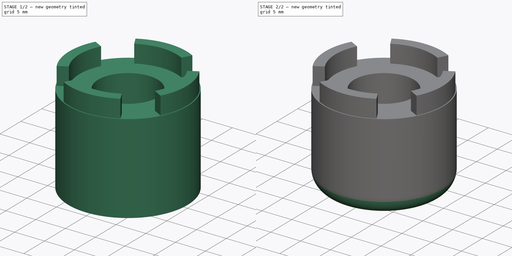
[diagram: build sequence overview — one tinted view per stage of 2, left to right]
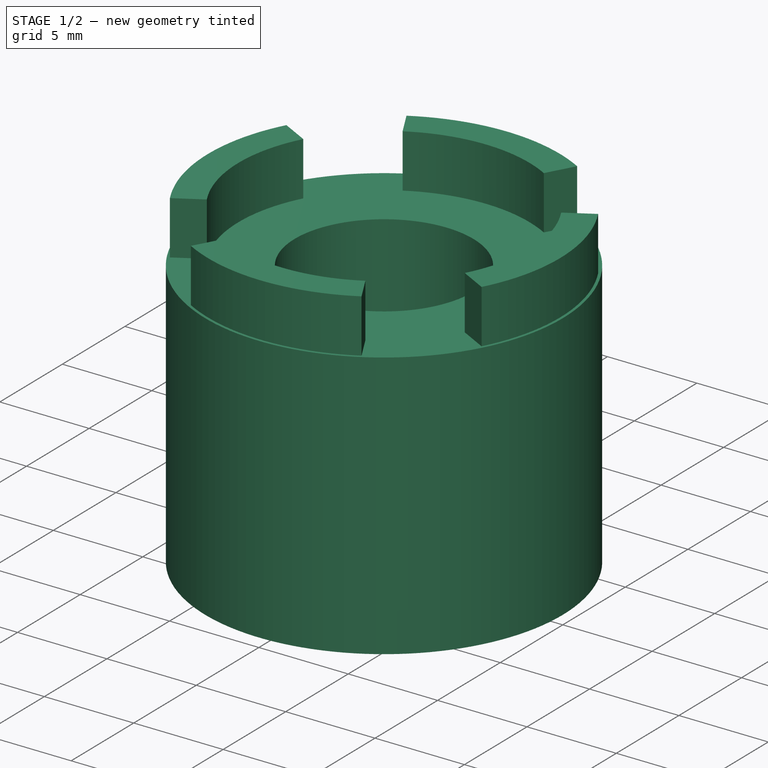
[diagram: stage 1 of 2 — iso view after this stage's code; geometry added in this stage tinted green]
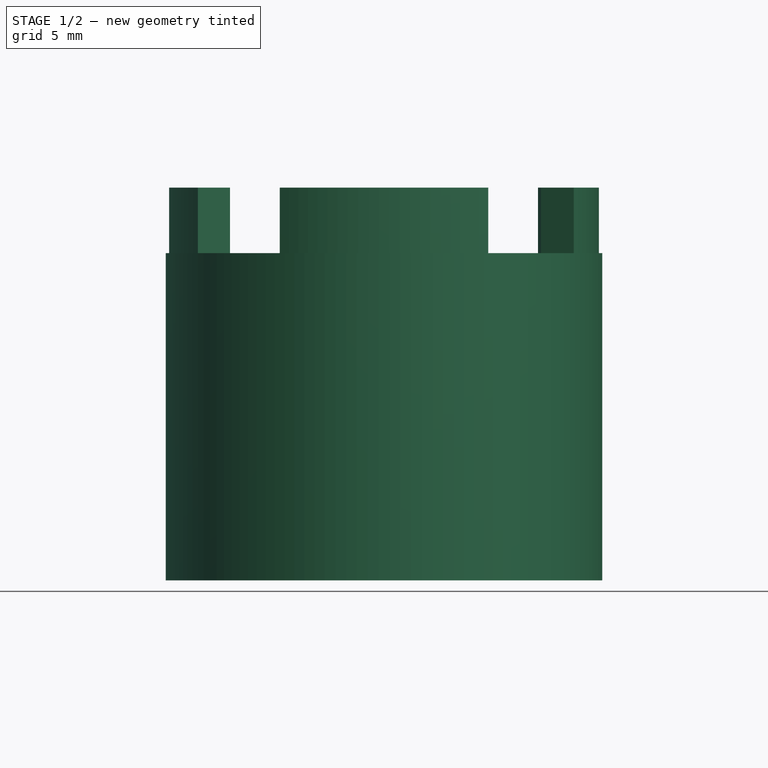
[diagram: stage 1 of 2 — front view after this stage's code; geometry added in this stage tinted green]
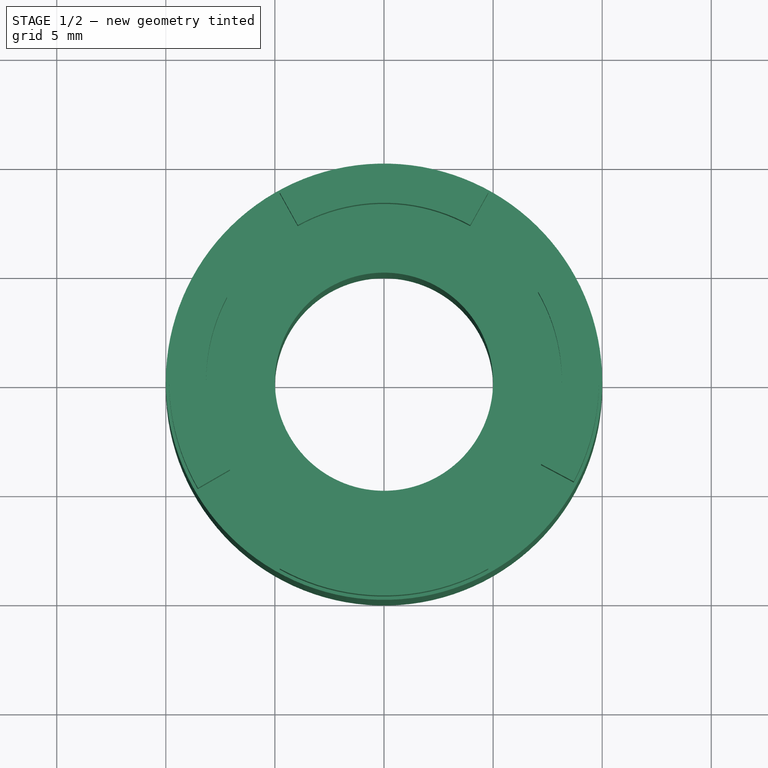
[diagram: stage 1 of 2 — top view after this stage's code; geometry added in this stage tinted green]
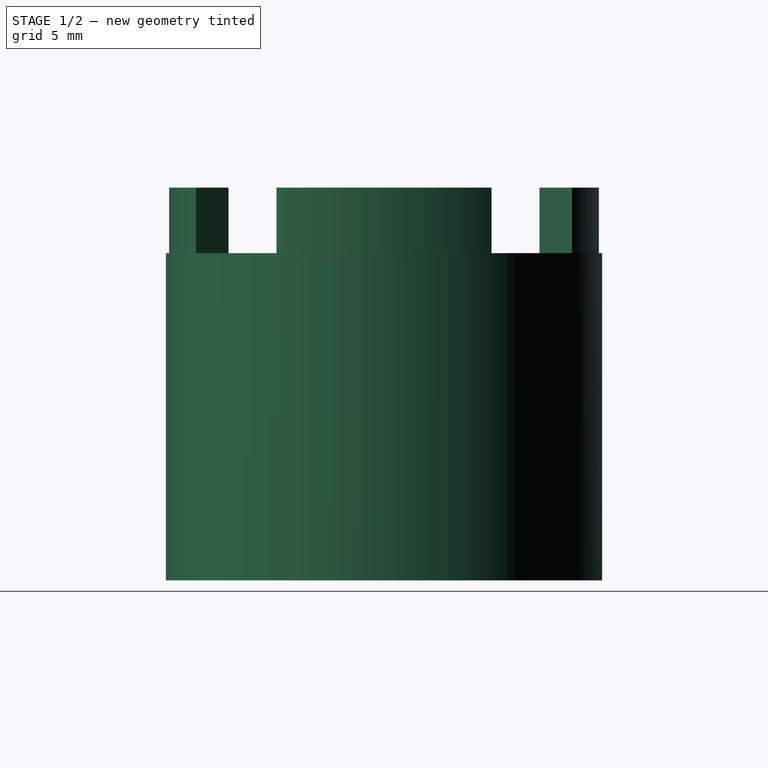
[diagram: stage 1 of 2 — right view after this stage's code; geometry added in this stage tinted green]
FCSTD DOCUMENT  (FreeCAD 0.18R16146 (Git))
Label: remote_eye
License: All rights reserved
LicenseURL: http://en.wikipedia.org/wiki/All_rights_reserved
objects: Sketcher::SketchObject×2, PartDesign::Pad×2, PartDesign::Fillet×1, PartDesign::Body×1
note: 8 computed .brp shape members not serialized (recipe doc carries the construction recipe); baked Part::Feature solids carry a one-line shape summary decoded from their .brp

FEATURE [Sketcher::SketchObject] Sketch
  MapMode = 5
  Support = -> [XY_Plane]
  sketch-geometry (2):
    g0: Circle CenterX=0 CenterY=0 CenterZ=0 NormalX=0 NormalY=0 NormalZ=1 AngleXU=0 Radius=5
    g1: Circle CenterX=0 CenterY=0 CenterZ=0 NormalX=0 NormalY=0 NormalZ=1 AngleXU=0 Radius=10
  constraints (4):
    c: Coincident(g0,g-1)
    c: Coincident(g1,g0)
    c: Diameter(g1) = 20
    c: Diameter(g0) = 10
FEATURE [PartDesign::Pad] Pad
  Length = 15
  Length2 = 100
  Profile = -> Sketch
  Type = 0
FEATURE [Sketcher::SketchObject] Sketch001
  MapMode = 5
  Placement = pos=(0,0,15) rot=(0,0,1;0rad)
  Support = -> [Pad]
  sketch-geometry (20):
    g0: ArcOfCircle CenterX=0 CenterY=0 CenterZ=0 NormalX=0 NormalY=0 NormalZ=1 AngleXU=0 Radius=9.85 StartAngle=2.6529 EndAngle=3.66519
    g1: ArcOfCircle CenterX=0 CenterY=0 CenterZ=0 NormalX=0 NormalY=0 NormalZ=1 AngleXU=0 Radius=8.15 StartAngle=2.6529 EndAngle=3.66519
    g2: LineSegment StartX=-3.9512 StartY=7.12815 StartZ=0 EndX=-4.77537 EndY=8.615 EndZ=0
    g3: LineSegment StartX=3.9512 StartY=7.12815 StartZ=0 EndX=4.77537 EndY=8.615 EndZ=0
    g4: LineSegment StartX=3.9512 StartY=-7.12815 StartZ=0 EndX=4.77537 EndY=-8.615 EndZ=0
    g5: LineSegment StartX=-3.9512 StartY=-7.12815 StartZ=0 EndX=-4.77537 EndY=-8.615 EndZ=0
    g6: LineSegment StartX=-7.05811 StartY=-4.075 StartZ=0 EndX=-8.53035 EndY=-4.925 EndZ=0
    g7: LineSegment StartX=-7.19602 StartY=3.82619 StartZ=0 EndX=-8.69703 EndY=4.62429 EndZ=0
    g8: LineSegment StartX=7.05811 StartY=4.075 StartZ=0 EndX=8.53035 EndY=4.925 EndZ=0
    g9: LineSegment StartX=7.19602 StartY=-3.82619 StartZ=0 EndX=8.69703 EndY=-4.62429 EndZ=0
    g10: ArcOfCircle CenterX=0 CenterY=0 CenterZ=0 NormalX=0 NormalY=0 NormalZ=1 AngleXU=0 Radius=8.15 StartAngle=1.06465 EndAngle=2.07694
    g11: ArcOfCircle CenterX=0 CenterY=0 CenterZ=0 NormalX=0 NormalY=0 NormalZ=1 AngleXU=0 Radius=9.85 StartAngle=1.06465 EndAngle=2.07694
    g12: ArcOfCircle CenterX=0 CenterY=0 CenterZ=0 NormalX=0 NormalY=0 NormalZ=1 AngleXU=0 Radius=8.15 StartAngle=5.79449 EndAngle=6.80678
    g13: ArcOfCircle CenterX=0 CenterY=0 CenterZ=0 NormalX=0 NormalY=0 NormalZ=1 AngleXU=0 Radius=9.85 StartAngle=5.79449 EndAngle=6.80678
    g14: ArcOfCircle CenterX=0 CenterY=0 CenterZ=0 NormalX=0 NormalY=0 NormalZ=1 AngleXU=0 Radius=8.15 StartAngle=4.20624 EndAngle=5.21853
    g15: ArcOfCircle CenterX=0 CenterY=0 CenterZ=0 NormalX=0 NormalY=0 NormalZ=1 AngleXU=0 Radius=9.85 StartAngle=4.20624 EndAngle=5.21853
    g16: LineSegment [constr] StartX=-3.9512 StartY=7.12815 StartZ=0 EndX=3.9512 EndY=-7.12815 EndZ=0
    g17: LineSegment [constr] StartX=3.9512 StartY=7.12815 StartZ=0 EndX=-3.9512 EndY=-7.12815 EndZ=0
    g18: LineSegment [constr] StartX=-7.05811 StartY=-4.075 StartZ=0 EndX=7.05811 EndY=4.075 EndZ=0
    g19: LineSegment [constr] StartX=7.19602 StartY=-3.82619 StartZ=0 EndX=-7.19602 EndY=3.82619 EndZ=0
  constraints (56):
    c: Coincident(g0,g-1)
    c: Coincident(g1,g0)
    c: Diameter(g0) = 19.7
    c: Diameter(g1) = 16.3
    c: Angle(g3,g2) = 1.01229
    c: Angle(g8,g3) = 0.541052
    c: Angle(g9,g8) = 1.01229
    c: Parallel(g9,g7)
    c: Parallel(g8,g6)
    c: Parallel(g2,g4)
    c: Parallel(g3,g5)
    c: Coincident(g1,g7)
    c: Coincident(g10,g2)
    c: Coincident(g0,g7)
    c: Coincident(g11,g2)
    c: Equal(g1,g10)
    c: Coincident(g12,g8)
    c: Coincident(g10,g3)
    c: Coincident(g1,g10)
    c: Equal(g0,g11)
    c: Coincident(g13,g8)
    c: PointOnObject(g11,g3)
    c: Coincident(g0,g11)
    c: Equal(g1,g12)
    c: Coincident(g14,g4)
    c: Coincident(g12,g9)
    c: Coincident(g1,g12)
    c: Equal(g0,g13)
    c: Coincident(g15,g4)
    c: Coincident(g13,g9)
    c: Coincident(g0,g13)
    c: Equal(g1,g14)
    c: Coincident(g1,g6)
    c: Coincident(g14,g5)
    c: Coincident(g1,g14)
    c: Equal(g0,g15)
    c: Coincident(g0,g6)
    c: Coincident(g15,g5)
    c: Coincident(g0,g15)
    c: Coincident(g16,g2)
    c: Coincident(g16,g4)
    c: Coincident(g17,g3)
    c: Coincident(g17,g5)
    c: Coincident(g18,g1)
    c: Coincident(g18,g8)
    c: Coincident(g19,g9)
    c: Coincident(g19,g1)
    c: PointOnObject(g0,g17)
    c: PointOnObject(g0,g16)
    c: PointOnObject(g0,g19)
    c: PointOnObject(g0,g18)
    c: Parallel(g2,g16)
    c: Parallel(g3,g17)
    c: Symmetric(g3,g2,g-2)
    c: Parallel(g8,g18)
    c: Parallel(g9,g19)
FEATURE [PartDesign::Pad] Pad001
  BaseFeature = -> Pad
  Length = 3
  Length2 = 100
  Profile = -> Sketch001
  Type = 0
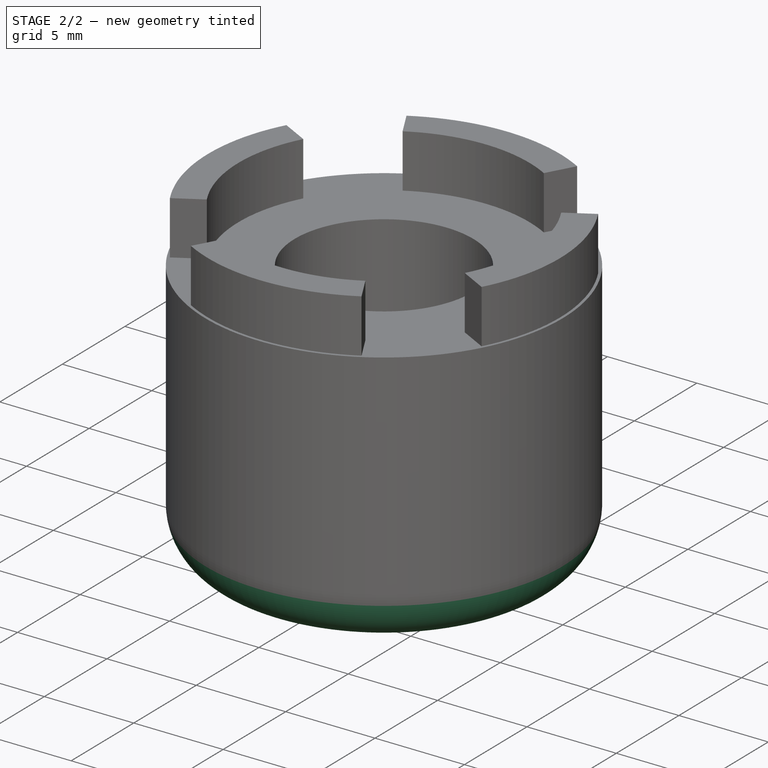
[diagram: stage 2 of 2 — iso view after this stage's code; geometry added in this stage tinted green]
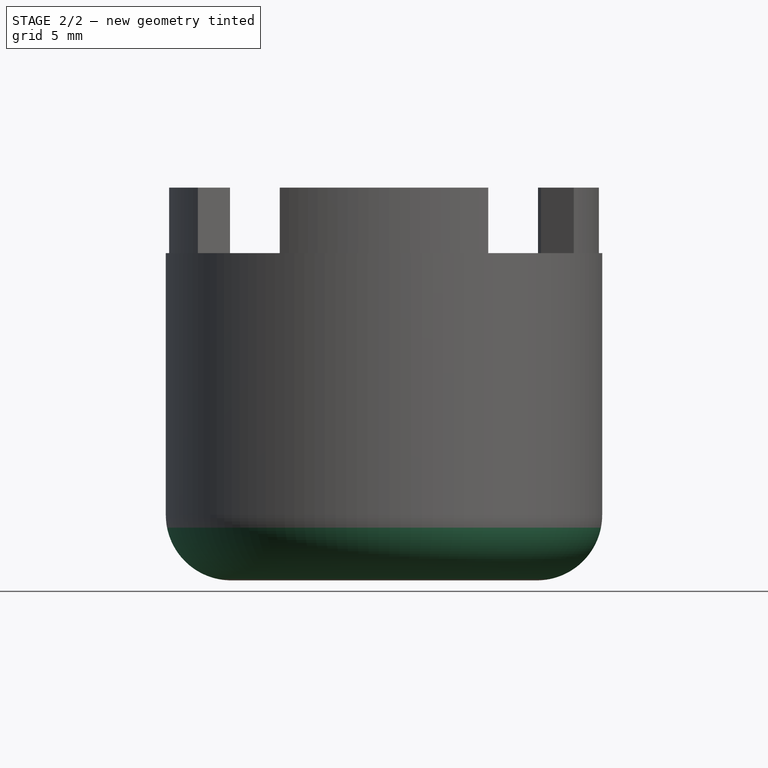
[diagram: stage 2 of 2 — front view after this stage's code; geometry added in this stage tinted green]
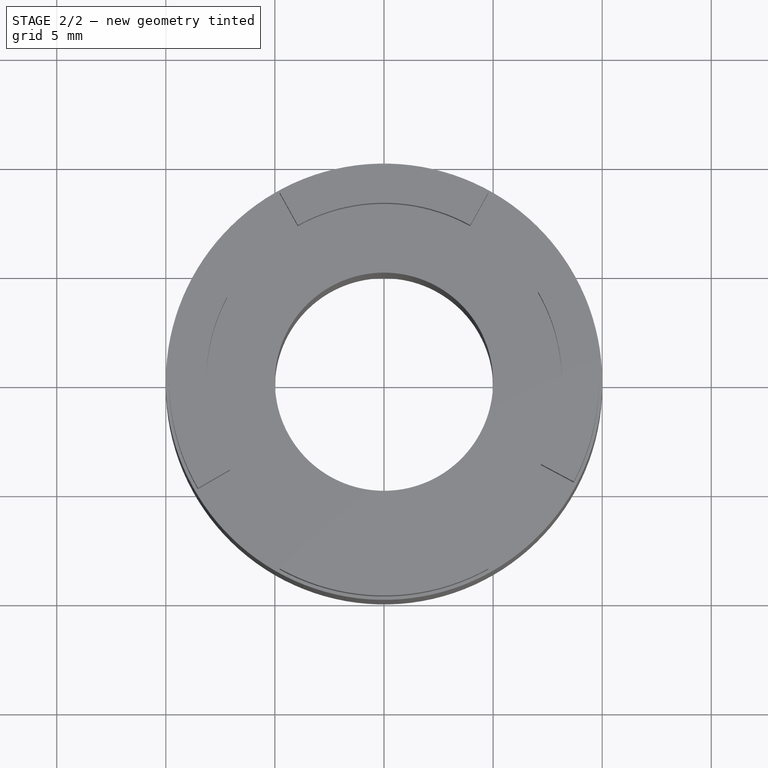
[diagram: stage 2 of 2 — top view after this stage's code; geometry added in this stage tinted green]
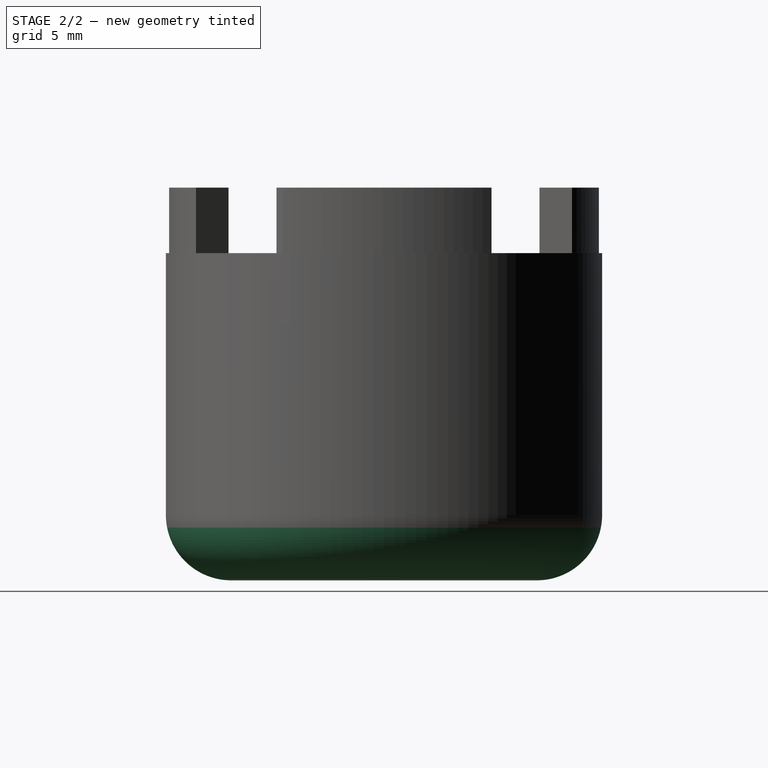
[diagram: stage 2 of 2 — right view after this stage's code; geometry added in this stage tinted green]
FEATURE [PartDesign::Fillet] Fillet
  Base = -> Pad001 [Edge2]
  BaseFeature = -> Pad001
  Radius = 3
FEATURE [PartDesign::Body] Body
  Group = -> [Sketch,Pad,Sketch001,Pad001,Fillet]
  Origin = -> Origin
  Tip = -> Fillet
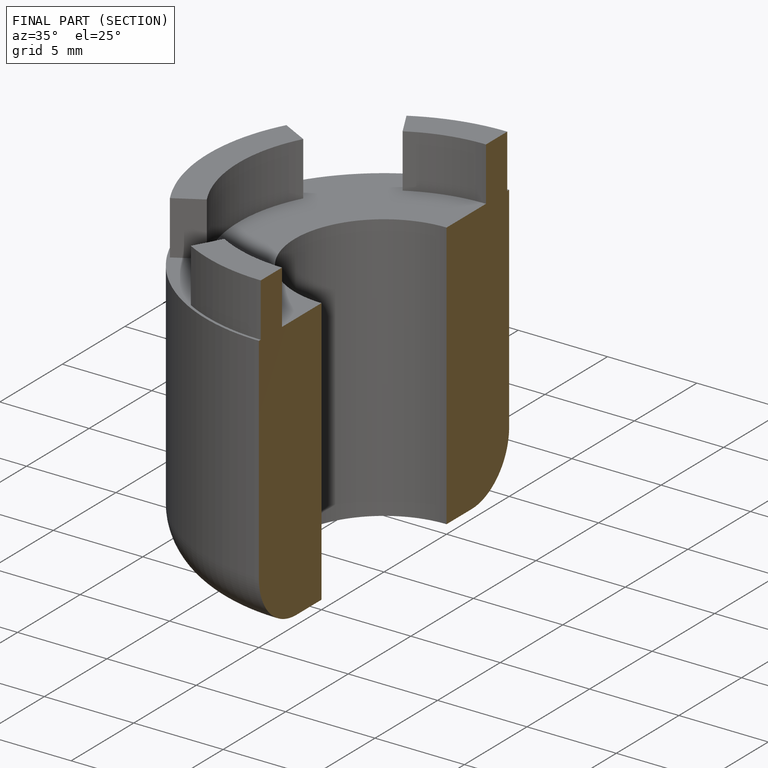
[diagram: finished part — half-section view (interior)]
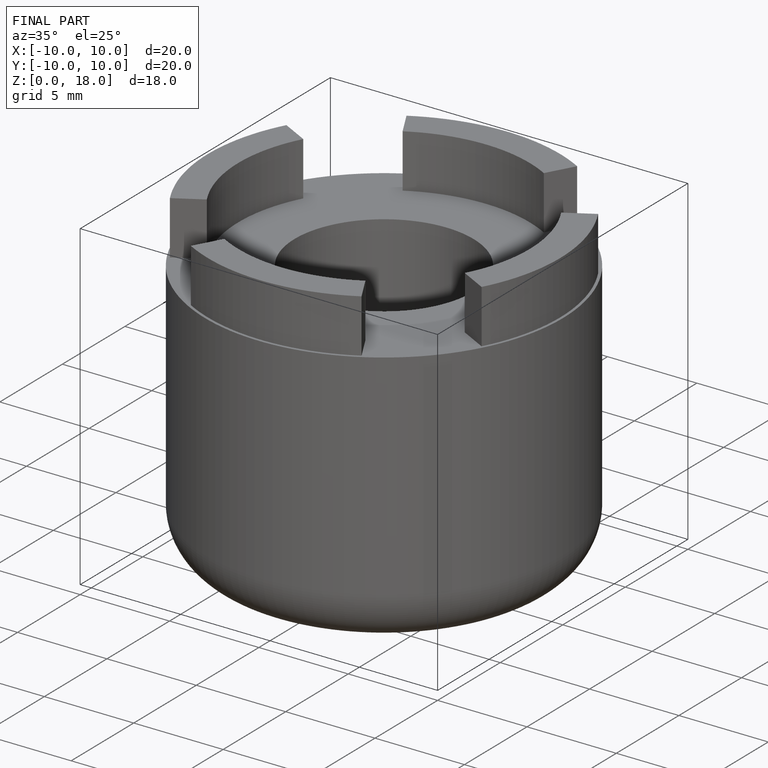
[diagram: finished part — iso view with bounding-box wireframe]
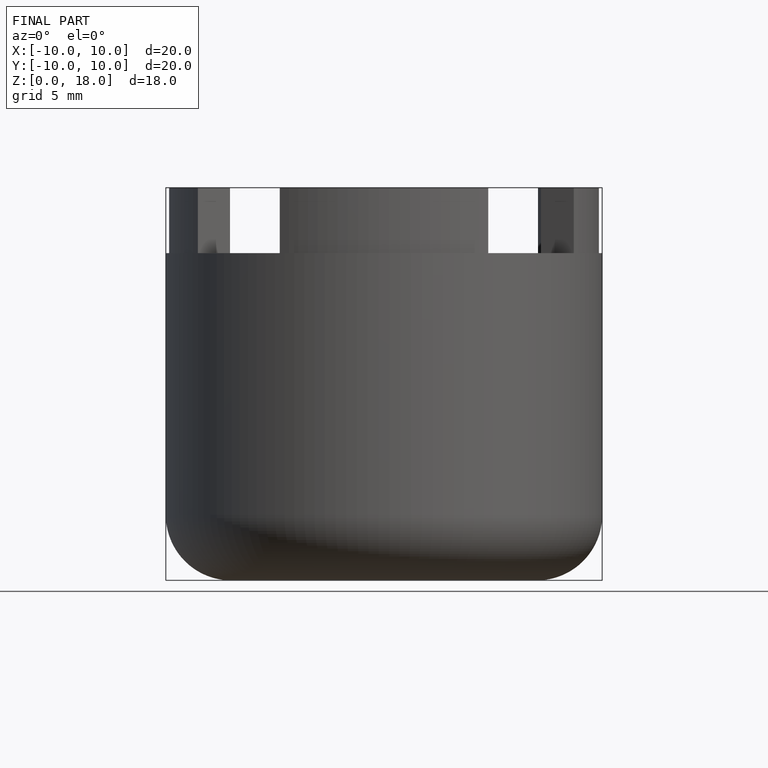
[diagram: finished part — front view with bounding-box wireframe]
